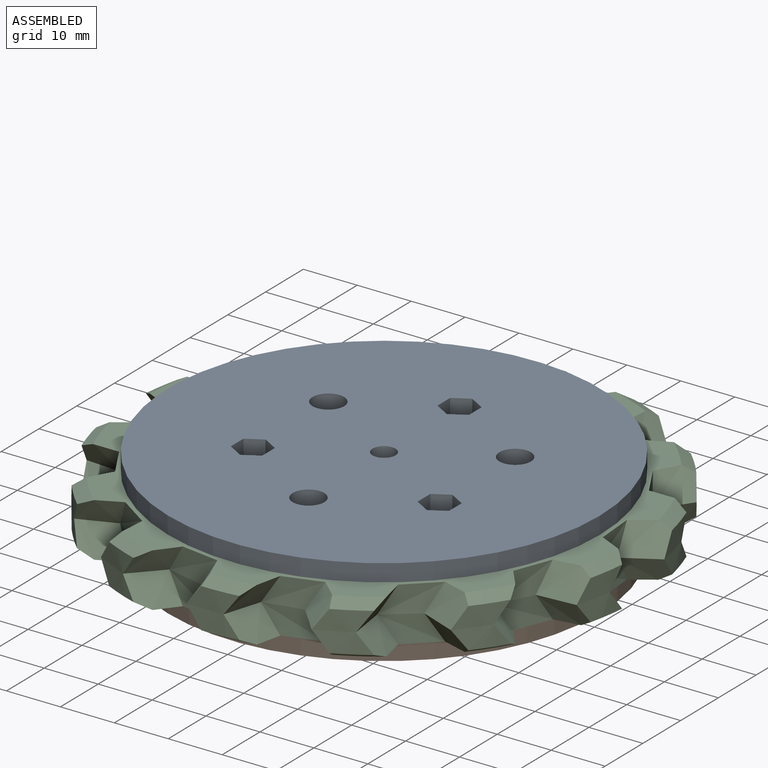
[diagram: assembled view]
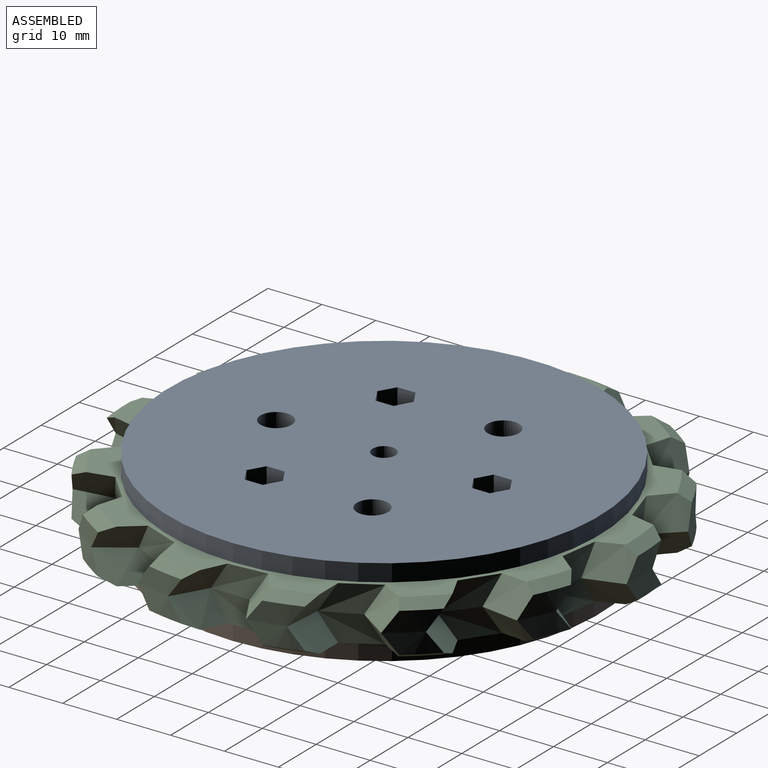
[diagram: assembled view, second angle]
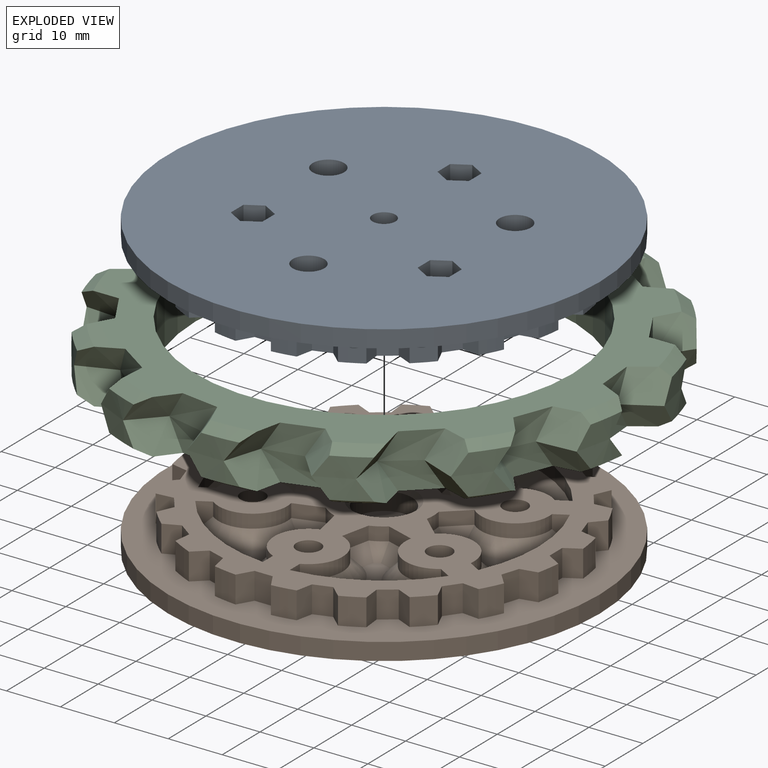
[diagram: exploded view]
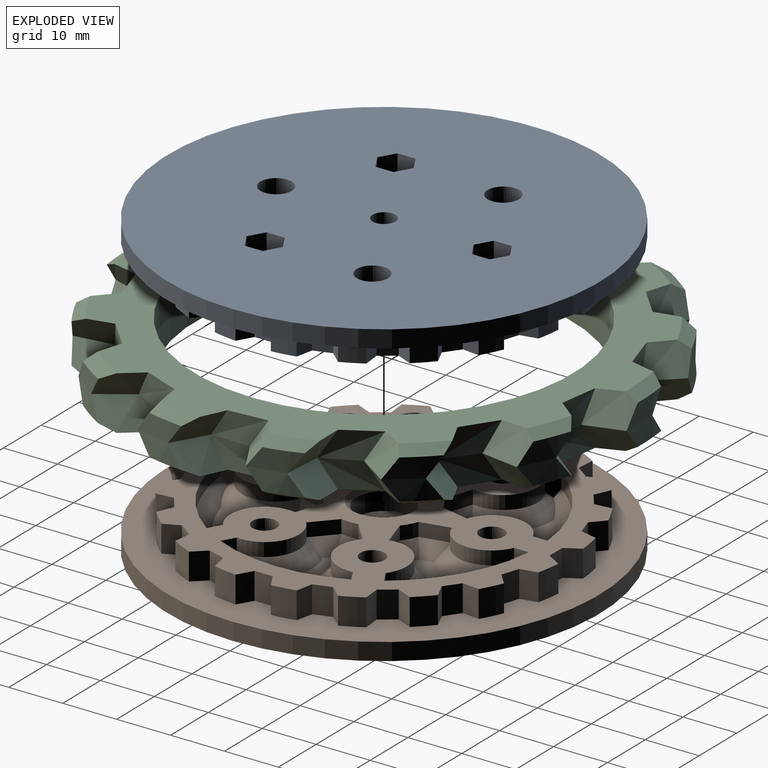
[diagram: exploded view, second angle]
ASSEMBLY  parts=3 mates=6
PART A: 226 faces, bbox 80.3x80.3x8.5 mm
  f0: plane 69.28x69.28mm, normal (0,0,1), area 1969.3mm2, adj f1,f2,f3,f4,f5,f6,f7,f8
  f1: cylinder r=34.79mm len=5mm, axis (0,0,1), area 21.8mm2, adj f0,f30,f87,f133
  f2: cylinder r=34.79mm len=5mm, axis (0,0,1), area 21.8mm2, adj f0,f30,f130,f135
  f3: cylinder r=34.79mm len=5mm, axis (0,0,1), area 21.8mm2, adj f0,f30,f127,f132
  f4: cylinder r=34.79mm len=5mm, axis (0,0,1), area 21.8mm2, adj f0,f30,f124,f129
  f5: cylinder r=34.79mm len=5mm, axis (0,0,1), area 21.8mm2, adj f0,f30,f121,f126
  f6: cylinder r=34.79mm len=5mm, axis (0,0,1), area 21.8mm2, adj f0,f30,f118,f123
  f7: cylinder r=34.79mm len=5mm, axis (0,0,1), area 21.8mm2, adj f0,f30,f115,f120
  f8: cylinder r=34.79mm len=5mm, axis (0,0,1), area 21.8mm2, adj f0,f30,f112,f117
  f9: cylinder r=34.79mm len=5mm, axis (0,0,1), area 21.8mm2, adj f0,f30,f109,f114
  f10: cylinder r=34.79mm len=5mm, axis (0,0,1), area 21.8mm2, adj f0,f30,f106,f111
  f11: cylinder r=34.79mm len=5mm, axis (0,0,1), area 21.8mm2, adj f0,f30,f103,f108
  f12: cylinder r=34.79mm len=5mm, axis (0,0,1), area 21.8mm2, adj f0,f30,f100,f105
  f13: cylinder r=34.79mm len=5mm, axis (0,0,1), area 21.8mm2, adj f0,f30,f97,f102
  f14: cylinder r=34.79mm len=5mm, axis (0,0,1), area 21.8mm2, adj f0,f30,f94,f99
  f15: cylinder r=34.79mm len=5mm, axis (0,0,1), area 21.8mm2, adj f0,f30,f91,f96
  f16: cylinder r=34.79mm len=5mm, axis (0,0,1), area 21.8mm2, adj f0,f30,f88,f93
  f17: cylinder r=34.79mm len=5mm, axis (0,0,1), area 21.8mm2, adj f0,f30,f84,f85
  f18: cylinder r=34.79mm len=5mm, axis (0,0,1), area 21.8mm2, adj f0,f30,f81,f82
  f19: cylinder r=34.79mm len=5mm, axis (0,0,1), area 21.8mm2, adj f0,f30,f77,f79
  f20: cylinder r=2.12mm len=4.25mm, axis (0,0,-1), area 54.7mm2, adj f27,f74
  f21: cylinder r=2.25mm len=4.5mm, axis (0,0,-1), area 52.8mm2, adj f0,f70
  f22: cylinder r=2.25mm len=4.5mm, axis (0,0,-1), area 51.3mm2, adj f0,f64,f65,f66,f67,f68,f69
  f23: cylinder r=2.25mm len=4.5mm, axis (0,0,-1), area 52.8mm2, adj f0,f71
  f24: cylinder r=2.25mm len=4.5mm, axis (0,0,-1), area 51.3mm2, adj f0,f52,f53,f54,f55,f56,f57
  f25: cylinder r=2.25mm len=4.5mm, axis (0,0,-1), area 52.8mm2, adj f0,f72
  f26: cylinder r=2.25mm len=4.5mm, axis (0,0,-1), area 51.3mm2, adj f0,f58,f59,f60,f61,f62,f63
  f27: plane 80x80mm, normal (0,0,-1), area 4843.7mm2, adj f20,f28,f31,f32,f33,f34,f35,f36
  f28: cylinder r=40mm len=80mm, axis (0,0,-1), area 804.2mm2, adj f27,f30
  f29: cylinder r=34.79mm len=5mm, axis (0,0,1), area 21.8mm2, adj f0,f30,f78,f90
  f30: plane 80x80mm, normal (0,0,1), area 1511.4mm2, adj f1,f2,f3,f4,f5,f6,f7,f8
  f31: plane 3.8x3.37mm, normal (1,0,0), area 12.8mm2, adj f27,f32,f36,f68
  f32: plane 3.8x2.92mm, normal (0.5,-0.87,0), area 12.8mm2, adj f27,f31,f33,f69
  f33: plane 3.8x2.92mm, normal (-0.5,-0.87,0), area 12.8mm2, adj f27,f32,f34,f67
  f34: plane 3.8x3.37mm, normal (-1,0,0), area 12.8mm2, adj f27,f33,f35,f65
  f35: plane 3.8x2.92mm, normal (-0.5,0.87,0), area 12.8mm2, adj f27,f34,f36,f64
  f36: plane 3.8x2.92mm, normal (0.5,0.87,0), area 12.8mm2, adj f27,f31,f35,f66
  f37: plane 3.8x2.92mm, normal (-0.5,0.87,0), area 12.8mm2, adj f27,f38,f42,f54
  f38: plane 3.8x2.92mm, normal (0.5,0.87,0), area 12.8mm2, adj f27,f37,f39,f56
  f39: plane 3.8x3.37mm, normal (1,0,0), area 12.8mm2, adj f27,f38,f40,f57
  f40: plane 3.8x2.92mm, normal (0.5,-0.87,0), area 12.8mm2, adj f27,f39,f41,f55
  f41: plane 3.8x2.92mm, normal (-0.5,-0.87,0), area 12.8mm2, adj f27,f40,f42,f53
  f42: plane 3.8x3.37mm, normal (-1,0,0), area 12.8mm2, adj f27,f37,f41,f52
  f43: plane 3.8x2.92mm, normal (-0.5,-0.87,0), area 12.8mm2, adj f27,f44,f48,f60
  f44: plane 3.8x3.37mm, normal (-1,0,0), area 12.8mm2, adj f27,f43,f45,f62
  f45: plane 3.8x2.92mm, normal (-0.5,0.87,0), area 12.8mm2, adj f27,f44,f46,f63
  f46: plane 3.8x2.92mm, normal (0.5,0.87,0), area 12.8mm2, adj f27,f45,f47,f61
  f47: plane 3.8x3.37mm, normal (1,0,0), area 12.8mm2, adj f27,f46,f48,f59
  f48: plane 3.8x2.92mm, normal (0.5,-0.87,0), area 12.8mm2, adj f27,f43,f47,f58
  f49: cylinder r=2.92mm len=5.84mm, axis (0,0,-1), area 69.7mm2, adj f27,f72
  f50: cylinder r=2.92mm len=5.84mm, axis (0,0,-1), area 69.7mm2, adj f27,f71
  f51: cylinder r=2.92mm len=5.84mm, axis (0,0,-1), area 69.7mm2, adj f27,f70
  f52: plane 3.37x0.97mm, normal (-0.71,0,-0.71), area 3.2mm2, adj f24,f42,f53,f54
  f53: plane 2.92x2.24mm, normal (-0.35,-0.61,-0.71), area 3.2mm2, adj f24,f41,f52,f55
  f54: plane 2.92x2.24mm, normal (-0.35,0.61,-0.71), area 3.2mm2, adj f24,f37,f52,f56
  f55: plane 2.92x2.24mm, normal (0.35,-0.61,-0.71), area 3.2mm2, adj f24,f40,f53,f57
  f56: plane 2.92x2.24mm, normal (0.35,0.61,-0.71), area 3.2mm2, adj f24,f38,f54,f57
  f57: plane 3.37x0.97mm, normal (0.71,0,-0.71), area 3.2mm2, adj f24,f39,f55,f56
  f58: plane 2.92x2.24mm, normal (0.35,-0.61,-0.71), area 3.2mm2, adj f26,f48,f59,f60
  f59: plane 3.37x0.97mm, normal (0.71,0,-0.71), area 3.2mm2, adj f26,f47,f58,f61
  f60: plane 2.92x2.24mm, normal (-0.35,-0.61,-0.71), area 3.2mm2, adj f26,f43,f58,f62
  f61: plane 2.92x2.24mm, normal (0.35,0.61,-0.71), area 3.2mm2, adj f26,f46,f59,f63
  f62: plane 3.37x0.97mm, normal (-0.71,0,-0.71), area 3.2mm2, adj f26,f44,f60,f63
  f63: plane 2.92x2.24mm, normal (-0.35,0.61,-0.71), area 3.2mm2, adj f26,f45,f61,f62
  f64: plane 2.92x2.24mm, normal (-0.35,0.61,-0.71), area 3.2mm2, adj f22,f35,f65,f66
  f65: plane 3.37x0.97mm, normal (-0.71,0,-0.71), area 3.2mm2, adj f22,f34,f64,f67
  f66: plane 2.92x2.24mm, normal (0.35,0.61,-0.71), area 3.2mm2, adj f22,f36,f64,f68
  f67: plane 2.92x2.24mm, normal (-0.35,-0.61,-0.71), area 3.2mm2, adj f22,f33,f65,f69
  f68: plane 3.37x0.97mm, normal (0.71,0,-0.71), area 3.2mm2, adj f22,f31,f66,f69
  f69: plane 2.92x2.24mm, normal (0.35,-0.61,-0.71), area 3.2mm2, adj f22,f32,f67,f68
  f70: cone r=0.72mm half-angle=45deg, axis (0,0,-1), area 15.3mm2, adj f21,f51
  f71: cone r=0.72mm half-angle=45deg, axis (0,0,-1), area 15.3mm2, adj f23,f50
  f72: cone r=0.72mm half-angle=45deg, axis (0,0,-1), area 15.3mm2, adj f25,f49
  f73: cylinder r=5.19mm len=10.38mm, axis (0,0,1), area 107.6mm2, adj f74,f75
  f74: plane 10.38x10.38mm, normal (0,0,1), area 70.4mm2, adj f20,f73
  f75: cone r=5.19mm half-angle=45deg, axis (0,0,1), area 39.7mm2, adj f0,f73
  f76: plane 5x3.37mm, normal (0,1,0), area 16.8mm2, adj f0,f30,f77,f78
  f77: plane 5x2.76mm, normal (-0.87,0.5,0), area 15.9mm2, adj f0,f19,f30,f76
  f78: plane 5x2.76mm, normal (0.87,0.5,0), area 15.9mm2, adj f0,f29,f30,f76
  f79: plane 5x3.12mm, normal (0.98,0.21,0), area 15.9mm2, adj f0,f19,f30,f80
  f80: plane 5x3.2mm, normal (0.31,0.95,0), area 16.8mm2, adj f0,f30,f79,f81
  f81: plane 5x2.37mm, normal (-0.67,0.74,0), area 15.9mm2, adj f0,f18,f30,f80
  f82: plane 5x3.17mm, normal (0.99,-0.1,0), area 15.9mm2, adj f0,f18,f30,f83
  f83: plane 5x2.73mm, normal (0.59,0.81,0), area 16.8mm2, adj f0,f30,f82,f84
  f84: plane 5x2.91mm, normal (-0.41,0.91,0), area 15.9mm2, adj f0,f17,f30,f83
  f85: plane 5x2.91mm, normal (0.91,-0.41,0), area 15.9mm2, adj f0,f17,f30,f86
  f86: plane 5x2.73mm, normal (0.81,0.59,0), area 16.8mm2, adj f0,f30,f85,f87
  f87: plane 5x3.17mm, normal (-0.1,0.99,0), area 15.9mm2, adj f0,f1,f30,f86
  f88: plane 5x2.37mm, normal (0.67,0.74,0), area 15.9mm2, adj f0,f16,f30,f89
  f89: plane 5x3.2mm, normal (-0.31,0.95,0), area 16.8mm2, adj f0,f30,f88,f90
  f90: plane 5x3.12mm, normal (-0.98,0.21,0), area 15.9mm2, adj f0,f29,f30,f89
  f91: plane 5x2.91mm, normal (0.41,0.91,0), area 15.9mm2, adj f0,f15,f30,f92
  f92: plane 5x2.73mm, normal (-0.59,0.81,0), area 16.8mm2, adj f0,f30,f91,f93
  f93: plane 5x3.17mm, normal (-0.99,-0.1,0), area 15.9mm2, adj f0,f16,f30,f92
  f94: plane 5x3.17mm, normal (0.1,0.99,0), area 15.9mm2, adj f0,f14,f30,f95
  f95: plane 5x2.73mm, normal (-0.81,0.59,0), area 16.8mm2, adj f0,f30,f94,f96
  f96: plane 5x2.91mm, normal (-0.91,-0.41,0), area 15.9mm2, adj f0,f15,f30,f95
  f97: plane 5x3.12mm, normal (-0.21,0.98,0), area 15.9mm2, adj f0,f13,f30,f98
  f98: plane 5x3.2mm, normal (-0.95,0.31,0), area 16.8mm2, adj f0,f30,f97,f99
  f99: plane 5x2.37mm, normal (-0.74,-0.67,0), area 15.9mm2, adj f0,f14,f30,f98
  f100: plane 5x2.76mm, normal (-0.5,0.87,0), area 15.9mm2, adj f0,f12,f30,f101
  f101: plane 5x3.37mm, normal (-1,0,0), area 16.8mm2, adj f0,f30,f100,f102
  f102: plane 5x2.76mm, normal (-0.5,-0.87,0), area 15.9mm2, adj f0,f13,f30,f101
  f103: plane 5x2.37mm, normal (-0.74,0.67,0), area 15.9mm2, adj f0,f11,f30,f104
  f104: plane 5x3.2mm, normal (-0.95,-0.31,0), area 16.8mm2, adj f0,f30,f103,f105
  f105: plane 5x3.12mm, normal (-0.21,-0.98,0), area 15.9mm2, adj f0,f12,f30,f104
  f106: plane 5x2.91mm, normal (-0.91,0.41,0), area 15.9mm2, adj f0,f10,f30,f107
  f107: plane 5x2.73mm, normal (-0.81,-0.59,0), area 16.8mm2, adj f0,f30,f106,f108
  f108: plane 5x3.17mm, normal (0.1,-0.99,0), area 15.9mm2, adj f0,f11,f30,f107
  f109: plane 5x3.17mm, normal (-0.99,0.1,0), area 15.9mm2, adj f0,f9,f30,f110
  f110: plane 5x2.73mm, normal (-0.59,-0.81,0), area 16.8mm2, adj f0,f30,f109,f111
  f111: plane 5x2.91mm, normal (0.41,-0.91,0), area 15.9mm2, adj f0,f10,f30,f110
  f112: plane 5x3.12mm, normal (-0.98,-0.21,0), area 15.9mm2, adj f0,f8,f30,f113
  f113: plane 5x3.2mm, normal (-0.31,-0.95,0), area 16.8mm2, adj f0,f30,f112,f114
  f114: plane 5x2.37mm, normal (0.67,-0.74,0), area 15.9mm2, adj f0,f9,f30,f113
  f115: plane 5x2.76mm, normal (-0.87,-0.5,0), area 15.9mm2, adj f0,f7,f30,f116
  f116: plane 5x3.37mm, normal (0,-1,0), area 16.8mm2, adj f0,f30,f115,f117
  f117: plane 5x2.76mm, normal (0.87,-0.5,0), area 15.9mm2, adj f0,f8,f30,f116
  f118: plane 5x2.37mm, normal (-0.67,-0.74,0), area 15.9mm2, adj f0,f6,f30,f119
  f119: plane 5x3.2mm, normal (0.31,-0.95,0), area 16.8mm2, adj f0,f30,f118,f120
  f120: plane 5x3.12mm, normal (0.98,-0.21,0), area 15.9mm2, adj f0,f7,f30,f119
  f121: plane 5x2.91mm, normal (-0.41,-0.91,0), area 15.9mm2, adj f0,f5,f30,f122
  f122: plane 5x2.73mm, normal (0.59,-0.81,0), area 16.8mm2, adj f0,f30,f121,f123
  f123: plane 5x3.17mm, normal (0.99,0.1,0), area 15.9mm2, adj f0,f6,f30,f122
  f124: plane 5x3.17mm, normal (-0.1,-0.99,0), area 15.9mm2, adj f0,f4,f30,f125
  f125: plane 5x2.73mm, normal (0.81,-0.59,0), area 16.8mm2, adj f0,f30,f124,f126
  f126: plane 5x2.91mm, normal (0.91,0.41,0), area 15.9mm2, adj f0,f5,f30,f125
  f127: plane 5x3.12mm, normal (0.21,-0.98,0), area 15.9mm2, adj f0,f3,f30,f128
  f128: plane 5x3.2mm, normal (0.95,-0.31,0), area 16.8mm2, adj f0,f30,f127,f129
  f129: plane 5x2.37mm, normal (0.74,0.67,0), area 15.9mm2, adj f0,f4,f30,f128
  f130: plane 5x2.76mm, normal (0.5,-0.87,0), area 15.9mm2, adj f0,f2,f30,f131
  f131: plane 5x3.37mm, normal (1,0,0), area 16.8mm2, adj f0,f30,f130,f132
  f132: plane 5x2.76mm, normal (0.5,0.87,0), area 15.9mm2, adj f0,f3,f30,f131
  f133: plane 5x2.37mm, normal (0.74,-0.67,0), area 15.9mm2, adj f0,f1,f30,f134
  f134: plane 5x3.2mm, normal (0.95,0.31,0), area 16.8mm2, adj f0,f30,f133,f135
  f135: plane 5x3.12mm, normal (0.21,0.98,0), area 15.9mm2, adj f0,f2,f30,f134
  f136: plane 3.86x2.78mm, normal (-1,0,0), area 8.6mm2, adj f0,f137,f143,f214,f215
  f137: cylinder r=28.68mm len=20.99mm, axis (0,0,1), area 62.6mm2, adj f0,f136,f138,f215
  f138: plane 3.86x2.41mm, normal (0.5,0.87,0), area 8.6mm2, adj f0,f137,f139,f215,f217
  f139: cylinder r=6.35mm len=10.16mm, axis (0,0,1), area 38.4mm2, adj f0,f138,f140,f217
  f140: plane 5.22x2.5mm, normal (0.3,0.95,0), area 13.7mm2, adj f0,f139,f141,f219
  f141: cylinder r=9.19mm len=2.7mm, axis (0,0,1), area 7.8mm2, adj f0,f140,f142,f218
  f142: plane 5.35x2.5mm, normal (-0.98,0.21,0), area 13.7mm2, adj f0,f141,f143,f216
  f143: cylinder r=6.35mm len=11.86mm, axis (0,0,1), area 38.4mm2, adj f0,f136,f142,f214
  f144: plane 15.34x13.35mm, normal (0,0,1), area 64.9mm2, adj f214,f215,f216,f217,f218,f219
  f145: cylinder r=28.68mm len=24.24mm, axis (0,0,1), area 62.6mm2, adj f0,f146,f152,f204
  f146: plane 3.86x2.41mm, normal (0.5,-0.87,0), area 8.6mm2, adj f0,f145,f147,f202,f204
  f147: cylinder r=6.35mm len=10.57mm, axis (0,0,1), area 38.4mm2, adj f0,f146,f148,f202
  f148: plane 4.05x3.69mm, normal (0.67,-0.74,0), area 13.7mm2, adj f0,f147,f149,f203
  f149: cylinder r=9.19mm len=3.12mm, axis (0,0,1), area 7.8mm2, adj f0,f148,f150,f205
  f150: plane 4.05x3.69mm, normal (0.67,0.74,0), area 13.7mm2, adj f0,f149,f151,f207
  f151: cylinder r=6.35mm len=10.57mm, axis (0,0,1), area 38.4mm2, adj f0,f150,f152,f206
  f152: plane 3.86x2.41mm, normal (0.5,0.87,0), area 8.6mm2, adj f0,f145,f151,f204,f206
  f153: plane 14.5x12.73mm, normal (0,0,1), area 64.9mm2, adj f202,f203,f204,f205,f206,f207
  f154: cylinder r=9.19mm len=2.7mm, axis (0,0,1), area 7.8mm2, adj f0,f155,f161,f208
  f155: plane 5.22x2.5mm, normal (-0.3,0.95,0), area 13.7mm2, adj f0,f154,f156,f209
  f156: cylinder r=6.35mm len=10.16mm, axis (0,0,1), area 38.4mm2, adj f0,f155,f157,f211
  f157: plane 3.86x2.41mm, normal (-0.5,0.87,0), area 8.6mm2, adj f0,f156,f158,f211,f213
  f158: cylinder r=28.68mm len=20.99mm, axis (0,0,1), area 62.6mm2, adj f0,f157,f159,f213
  f159: plane 3.86x2.78mm, normal (1,0,0), area 8.6mm2, adj f0,f158,f160,f212,f213
  f160: cylinder r=6.35mm len=11.86mm, axis (0,0,1), area 38.4mm2, adj f0,f159,f161,f212
  f161: plane 5.35x2.5mm, normal (0.98,0.21,0), area 13.7mm2, adj f0,f154,f160,f210
  f162: plane 15.34x13.35mm, normal (0,0,1), area 64.9mm2, adj f208,f209,f210,f211,f212,f213
  f163: plane 3.86x2.41mm, normal (-0.5,-0.87,0), area 8.6mm2, adj f0,f164,f170,f220,f222
  f164: cylinder r=28.68mm len=24.24mm, axis (0,0,1), area 62.6mm2, adj f0,f163,f165,f222
  f165: plane 3.86x2.41mm, normal (-0.5,0.87,0), area 8.6mm2, adj f0,f164,f166,f222,f224
  f166: cylinder r=6.35mm len=10.57mm, axis (0,0,1), area 38.4mm2, adj f0,f165,f167,f224
  f167: plane 4.05x3.69mm, normal (-0.67,0.74,0), area 13.7mm2, adj f0,f166,f168,f225
  f168: cylinder r=9.19mm len=3.12mm, axis (0,0,1), area 7.8mm2, adj f0,f167,f169,f223
  f169: plane 4.05x3.69mm, normal (-0.67,-0.74,0), area 13.7mm2, adj f0,f168,f170,f221
  f170: cylinder r=6.35mm len=10.57mm, axis (0,0,1), area 38.4mm2, adj f0,f163,f169,f220
  f171: plane 14.5x12.73mm, normal (0,0,1), area 64.9mm2, adj f220,f221,f222,f223,f224,f225
  f172: plane 3.86x2.41mm, normal (0.5,-0.87,0), area 8.6mm2, adj f0,f173,f179,f190,f192
  f173: cylinder r=28.68mm len=20.99mm, axis (0,0,1), area 62.6mm2, adj f0,f172,f174,f192
  f174: plane 3.86x2.78mm, normal (-1,0,0), area 8.6mm2, adj f0,f173,f175,f192,f194
  f175: cylinder r=6.35mm len=11.86mm, axis (0,0,1), area 38.4mm2, adj f0,f174,f176,f194
  f176: plane 5.35x2.5mm, normal (-0.98,-0.21,0), area 13.7mm2, adj f0,f175,f177,f195
  f177: cylinder r=9.19mm len=2.7mm, axis (0,0,1), area 7.8mm2, adj f0,f176,f178,f193
  f178: plane 5.22x2.5mm, normal (0.3,-0.95,0), area 13.7mm2, adj f0,f177,f179,f191
  f179: cylinder r=6.35mm len=10.16mm, axis (0,0,1), area 38.4mm2, adj f0,f172,f178,f190
  f180: plane 15.34x13.35mm, normal (0,0,1), area 64.9mm2, adj f190,f191,f192,f193,f194,f195
  f181: plane 3.86x2.78mm, normal (1,0,0), area 8.6mm2, adj f0,f182,f188,f196,f198
  f182: cylinder r=28.68mm len=20.99mm, axis (0,0,1), area 62.6mm2, adj f0,f181,f183,f198
  f183: plane 3.86x2.41mm, normal (-0.5,-0.87,0), area 8.6mm2, adj f0,f182,f184,f198,f200
  f184: cylinder r=6.35mm len=10.16mm, axis (0,0,1), area 38.4mm2, adj f0,f183,f185,f200
  f185: plane 5.22x2.5mm, normal (-0.3,-0.95,0), area 13.7mm2, adj f0,f184,f186,f201
  f186: cylinder r=9.19mm len=2.7mm, axis (0,0,1), area 7.8mm2, adj f0,f185,f187,f199
  f187: plane 5.35x2.5mm, normal (0.98,-0.21,0), area 13.7mm2, adj f0,f186,f188,f197
  f188: cylinder r=6.35mm len=11.86mm, axis (0,0,1), area 38.4mm2, adj f0,f181,f187,f196
  f189: plane 15.34x13.35mm, normal (0,0,1), area 64.9mm2, adj f196,f197,f198,f199,f200,f201
  f190: cone r=6.35mm half-angle=45deg, axis (0,0,-1), area 58.4mm2, adj f172,f179,f180,f191,f192
  f191: plane 5.49x3.72mm, normal (0.21,-0.67,0.71), area 13.5mm2, adj f178,f180,f190,f193
  f192: cone r=26.18mm half-angle=45deg, axis (0,0,1), area 75.7mm2, adj f172,f173,f174,f180,f190,f194
  f193: cone r=9.19mm half-angle=45deg, axis (0,0,-1), area 7.9mm2, adj f177,f180,f191,f195
  f194: cone r=6.35mm half-angle=45deg, axis (0,0,-1), area 58.4mm2, adj f174,f175,f180,f192,f195
  f195: plane 5.62x3.62mm, normal (-0.69,-0.15,0.71), area 13.5mm2, adj f176,f180,f193,f194
  f196: cone r=6.35mm half-angle=45deg, axis (0,0,-1), area 58.4mm2, adj f181,f188,f189,f197,f198
  f197: plane 5.62x3.62mm, normal (0.69,-0.15,0.71), area 13.5mm2, adj f187,f189,f196,f199
  f198: cone r=26.18mm half-angle=45deg, axis (0,0,1), area 75.7mm2, adj f181,f182,f183,f189,f196,f200
  f199: cone r=9.19mm half-angle=45deg, axis (0,0,-1), area 7.9mm2, adj f186,f189,f197,f201
  f200: cone r=6.35mm half-angle=45deg, axis (0,0,-1), area 58.4mm2, adj f183,f184,f189,f198,f201
  f201: plane 5.49x3.72mm, normal (-0.21,-0.67,0.71), area 13.5mm2, adj f185,f189,f199,f200
  f202: cone r=6.35mm half-angle=45deg, axis (0,0,-1), area 58.4mm2, adj f146,f147,f153,f203,f204
  f203: plane 4.96x4.56mm, normal (0.48,-0.52,0.71), area 13.5mm2, adj f148,f153,f202,f205
  f204: cone r=26.18mm half-angle=45deg, axis (0,0,1), area 75.7mm2, adj f145,f146,f152,f153,f202,f206
  f205: cone r=9.19mm half-angle=45deg, axis (0,0,-1), area 7.9mm2, adj f149,f153,f203,f207
  f206: cone r=6.35mm half-angle=45deg, axis (0,0,-1), area 58.4mm2, adj f151,f152,f153,f204,f207
  f207: plane 4.96x4.56mm, normal (0.48,0.52,0.71), area 13.5mm2, adj f150,f153,f205,f206
  f208: cone r=9.19mm half-angle=45deg, axis (0,0,-1), area 7.9mm2, adj f154,f162,f209,f210
  f209: plane 5.49x3.72mm, normal (-0.21,0.67,0.71), area 13.5mm2, adj f155,f162,f208,f211
  f210: plane 5.62x3.62mm, normal (0.69,0.15,0.71), area 13.5mm2, adj f161,f162,f208,f212
  f211: cone r=6.35mm half-angle=45deg, axis (0,0,-1), area 58.4mm2, adj f156,f157,f162,f209,f213
  f212: cone r=6.35mm half-angle=45deg, axis (0,0,-1), area 58.4mm2, adj f159,f160,f162,f210,f213
  f213: cone r=26.18mm half-angle=45deg, axis (0,0,1), area 75.7mm2, adj f157,f158,f159,f162,f211,f212
  f214: cone r=6.35mm half-angle=45deg, axis (0,0,-1), area 58.4mm2, adj f136,f143,f144,f215,f216
  f215: cone r=26.18mm half-angle=45deg, axis (0,0,1), area 75.7mm2, adj f136,f137,f138,f144,f214,f217
  f216: plane 5.62x3.62mm, normal (-0.69,0.15,0.71), area 13.5mm2, adj f142,f144,f214,f218
  f217: cone r=6.35mm half-angle=45deg, axis (0,0,-1), area 58.4mm2, adj f138,f139,f144,f215,f219
  f218: cone r=9.19mm half-angle=45deg, axis (0,0,-1), area 7.9mm2, adj f141,f144,f216,f219
  f219: plane 5.49x3.72mm, normal (0.21,0.67,0.71), area 13.5mm2, adj f140,f144,f217,f218
  f220: cone r=6.35mm half-angle=45deg, axis (0,0,-1), area 58.4mm2, adj f163,f170,f171,f221,f222
  f221: plane 4.96x4.56mm, normal (-0.48,-0.52,0.71), area 13.5mm2, adj f169,f171,f220,f223
  f222: cone r=26.18mm half-angle=45deg, axis (0,0,1), area 75.7mm2, adj f163,f164,f165,f171,f220,f224
  f223: cone r=9.19mm half-angle=45deg, axis (0,0,-1), area 7.9mm2, adj f168,f171,f221,f225
  f224: cone r=6.35mm half-angle=45deg, axis (0,0,-1), area 58.4mm2, adj f165,f166,f171,f222,f225
  f225: plane 4.96x4.56mm, normal (-0.48,0.52,0.71), area 13.5mm2, adj f167,f171,f223,f224
PART B: same geometry as A
PART C: 129 faces, bbox 94.9x95.6x30.8 mm
  f0: plane 90.51x90.37mm, normal (0,0,-1), area 1980.2mm2, adj f15,f16,f17,f18,f19,f20,f21,f22
  f1: cylinder r=47.5mm len=9.4mm, axis (0,0,-1), area 50.5mm2, adj f16,f41,f47,f97,f102,f104
  f2: cylinder r=47.5mm len=7.66mm, axis (0,0,-1), area 50.5mm2, adj f39,f42,f93,f99,f101,f103
  f3: cylinder r=47.5mm len=8.51mm, axis (0,0,-1), area 50.5mm2, adj f37,f40,f89,f95,f105,f106
  f4: cylinder r=47.5mm len=9.57mm, axis (0,0,-1), area 50.5mm2, adj f35,f38,f85,f91,f107,f108
  f5: cylinder r=47.5mm len=8.75mm, axis (0,0,-1), area 50.5mm2, adj f33,f36,f81,f87,f109,f110
  f6: cylinder r=47.5mm len=7.4mm, axis (0,0,-1), area 50.5mm2, adj f31,f34,f77,f83,f111,f112
  f7: cylinder r=47.5mm len=9.27mm, axis (0,0,-1), area 50.5mm2, adj f29,f32,f73,f79,f113,f114
  f8: cylinder r=47.5mm len=9.4mm, axis (0,0,-1), area 50.5mm2, adj f27,f30,f69,f75,f115,f116
  f9: cylinder r=47.5mm len=7.66mm, axis (0,0,-1), area 50.5mm2, adj f25,f28,f65,f71,f117,f118
  f10: cylinder r=47.5mm len=8.51mm, axis (0,0,-1), area 50.5mm2, adj f23,f26,f61,f67,f119,f120
  f11: cylinder r=47.5mm len=9.57mm, axis (0,0,-1), area 50.5mm2, adj f21,f24,f57,f63,f121,f122
  f12: cylinder r=47.5mm len=8.75mm, axis (0,0,-1), area 50.5mm2, adj f19,f22,f53,f59,f123,f124
  f13: cylinder r=47.5mm len=7.4mm, axis (0,0,-1), area 50.5mm2, adj f17,f20,f49,f55,f125,f126
  f14: cylinder r=47.5mm len=9.27mm, axis (0,0,-1), area 50.5mm2, adj f15,f18,f45,f51,f127,f128
  f15: bspline ~15.38x14.63mm, area 40.9mm2, adj f0,f14,f45,f48,f127
  f16: bspline ~6.82x6.67mm, area 40.9mm2, adj f0,f1,f47,f48,f102
  f17: bspline ~8.96x5.82mm, area 40.9mm2, adj f0,f13,f49,f52,f125
  f18: bspline ~15.38x11.76mm, area 40.9mm2, adj f0,f14,f51,f52,f127
  f19: bspline ~15.38x11.59mm, area 40.9mm2, adj f0,f12,f53,f56,f123
  f20: bspline ~9.13x5.28mm, area 40.9mm2, adj f0,f13,f55,f56,f125
  f21: bspline ~15.38x13.56mm, area 40.9mm2, adj f0,f11,f57,f60,f121
  f22: bspline ~15.38x14.58mm, area 40.9mm2, adj f0,f12,f59,f60,f123
  f23: bspline ~8.32x6.4mm, area 40.9mm2, adj f0,f10,f61,f64,f119
  f24: bspline ~15.38x11.65mm, area 40.9mm2, adj f0,f11,f63,f64,f121
  f25: bspline ~15.38x13.41mm, area 40.9mm2, adj f0,f9,f65,f68,f117
  f26: bspline ~15.38x13.52mm, area 40.9mm2, adj f0,f10,f67,f68,f119
  f27: bspline ~15.38x11.81mm, area 40.9mm2, adj f0,f8,f69,f72,f115
  f28: bspline ~15.38x14.97mm, area 40.9mm2, adj f0,f9,f71,f72,f117
  f29: bspline ~15.38x14.63mm, area 40.9mm2, adj f0,f7,f73,f76,f113
  f30: bspline ~6.82x6.67mm, area 40.9mm2, adj f0,f8,f75,f76,f115
  f31: bspline ~8.96x5.82mm, area 40.9mm2, adj f0,f6,f77,f80,f111
  f32: bspline ~15.38x11.76mm, area 40.9mm2, adj f0,f7,f79,f80,f113
  f33: bspline ~15.38x11.59mm, area 40.9mm2, adj f0,f5,f81,f84,f109
  f34: bspline ~9.13x5.28mm, area 40.9mm2, adj f0,f6,f83,f84,f111
  f35: bspline ~15.38x13.56mm, area 40.9mm2, adj f0,f4,f85,f88,f107
  f36: bspline ~15.38x14.58mm, area 40.9mm2, adj f0,f5,f87,f88,f109
  f37: bspline ~8.32x6.4mm, area 40.9mm2, adj f0,f3,f89,f92,f105
  f38: bspline ~15.38x11.65mm, area 40.9mm2, adj f0,f4,f91,f92,f107
  f39: bspline ~15.38x13.41mm, area 40.9mm2, adj f0,f2,f93,f96,f101
  f40: bspline ~15.38x13.52mm, area 40.9mm2, adj f0,f3,f95,f96,f105
  f41: bspline ~15.38x11.81mm, area 40.9mm2, adj f0,f1,f97,f100,f102
  f42: bspline ~15.38x14.97mm, area 40.9mm2, adj f0,f2,f99,f100,f101
  f43: cylinder r=35mm len=70mm, axis (0,0,-1), area 2199.1mm2, adj f0,f44
  f44: plane 90.51x90.37mm, normal (0,0,1), area 1980.2mm2, adj f43,f45,f46,f47,f49,f50,f51,f53
  f45: bspline ~15.38x14.63mm, area 40.9mm2, adj f14,f15,f44,f46,f128
  f46: bspline ~10.4x5mm, area 36.1mm2, adj f44,f45,f47,f48
  f47: bspline ~6.82x6.67mm, area 40.9mm2, adj f1,f16,f44,f46,f104
  f48: bspline ~10.4x5mm, area 36.1mm2, adj f0,f15,f16,f46
  f49: bspline ~8.96x5.82mm, area 40.9mm2, adj f13,f17,f44,f50,f126
  f50: bspline ~9.2x5mm, area 36.1mm2, adj f44,f49,f51,f52
  f51: bspline ~15.38x11.76mm, area 40.9mm2, adj f14,f18,f44,f50,f128
  f52: bspline ~9.2x5mm, area 36.1mm2, adj f0,f17,f18,f50
  f53: bspline ~15.38x11.59mm, area 40.9mm2, adj f12,f19,f44,f54,f124
  f54: bspline ~8.39x6.17mm, area 36.1mm2, adj f44,f53,f55,f56
  f55: bspline ~9.13x5.28mm, area 40.9mm2, adj f13,f20,f44,f54,f126
  f56: bspline ~8.39x6.17mm, area 36.1mm2, adj f0,f19,f20,f54
  f57: bspline ~15.38x13.56mm, area 40.9mm2, adj f11,f21,f44,f58,f122
  f58: bspline ~10.23x5mm, area 36.1mm2, adj f44,f57,f59,f60
  f59: bspline ~15.38x14.58mm, area 40.9mm2, adj f12,f22,f44,f58,f124
  f60: bspline ~10.23x5mm, area 36.1mm2, adj f0,f21,f22,f58
  f61: bspline ~8.32x6.4mm, area 40.9mm2, adj f10,f23,f44,f62,f120
  f62: bspline ~10.05x5mm, area 36.1mm2, adj f44,f61,f63,f64
  f63: bspline ~15.38x11.65mm, area 40.9mm2, adj f11,f24,f44,f62,f122
  f64: bspline ~10.05x5mm, area 36.1mm2, adj f0,f23,f24,f62
  f65: bspline ~15.38x13.41mm, area 40.9mm2, adj f9,f25,f44,f66,f118
  f66: bspline ~7.88x6.81mm, area 36.1mm2, adj f44,f65,f67,f68
  f67: bspline ~15.38x13.52mm, area 40.9mm2, adj f10,f26,f44,f66,f120
  f68: bspline ~7.88x6.81mm, area 36.1mm2, adj f0,f25,f26,f66
  f69: bspline ~15.38x11.81mm, area 40.9mm2, adj f8,f27,f44,f70,f116
  f70: bspline ~9.55x5mm, area 36.1mm2, adj f44,f69,f71,f72
  f71: bspline ~15.38x14.97mm, area 40.9mm2, adj f9,f28,f44,f70,f118
  f72: bspline ~9.55x5mm, area 36.1mm2, adj f0,f27,f28,f70
  f73: bspline ~15.38x14.63mm, area 40.9mm2, adj f7,f29,f44,f74,f114
  f74: bspline ~10.4x5mm, area 36.1mm2, adj f44,f73,f75,f76
  f75: bspline ~6.82x6.67mm, area 40.9mm2, adj f8,f30,f44,f74,f116
  f76: bspline ~10.4x5mm, area 36.1mm2, adj f0,f29,f30,f74
  f77: bspline ~8.96x5.82mm, area 40.9mm2, adj f6,f31,f44,f78,f112
  f78: bspline ~9.2x5mm, area 36.1mm2, adj f44,f77,f79,f80
  f79: bspline ~15.38x11.76mm, area 40.9mm2, adj f7,f32,f44,f78,f114
  f80: bspline ~9.2x5mm, area 36.1mm2, adj f0,f31,f32,f78
  f81: bspline ~15.38x11.59mm, area 40.9mm2, adj f5,f33,f44,f82,f110
  f82: bspline ~8.39x6.17mm, area 36.1mm2, adj f44,f81,f83,f84
  f83: bspline ~9.13x5.28mm, area 40.9mm2, adj f6,f34,f44,f82,f112
  f84: bspline ~8.39x6.17mm, area 36.1mm2, adj f0,f33,f34,f82
  f85: bspline ~15.38x13.56mm, area 40.9mm2, adj f4,f35,f44,f86,f108
  f86: bspline ~10.23x5mm, area 36.1mm2, adj f44,f85,f87,f88
  f87: bspline ~15.38x14.58mm, area 40.9mm2, adj f5,f36,f44,f86,f110
  f88: bspline ~10.23x5mm, area 36.1mm2, adj f0,f35,f36,f86
  f89: bspline ~8.32x6.4mm, area 40.9mm2, adj f3,f37,f44,f90,f106
  f90: bspline ~10.05x5mm, area 36.1mm2, adj f44,f89,f91,f92
  f91: bspline ~15.38x11.65mm, area 40.9mm2, adj f4,f38,f44,f90,f108
  f92: bspline ~10.05x5mm, area 36.1mm2, adj f0,f37,f38,f90
  f93: bspline ~15.38x13.41mm, area 40.9mm2, adj f2,f39,f44,f94,f103
  f94: bspline ~7.88x6.81mm, area 36.1mm2, adj f44,f93,f95,f96
  f95: bspline ~15.38x13.52mm, area 40.9mm2, adj f3,f40,f44,f94,f106
  f96: bspline ~7.88x6.81mm, area 36.1mm2, adj f0,f39,f40,f94
  f97: bspline ~15.38x11.81mm, area 40.9mm2, adj f1,f41,f44,f98,f104
  f98: bspline ~9.55x5mm, area 36.1mm2, adj f44,f97,f99,f100
  f99: bspline ~15.38x14.97mm, area 40.9mm2, adj f2,f42,f44,f98,f103
  f100: bspline ~9.55x5mm, area 36.1mm2, adj f0,f41,f42,f98
  f101: cone r=48.02mm half-angle=60deg, axis (0,0,1), area 19.6mm2, adj f0,f2,f39,f42
  f102: cone r=48.02mm half-angle=60deg, axis (0,0,1), area 19.6mm2, adj f0,f1,f16,f41
  f103: cone r=48.02mm half-angle=60deg, axis (0,0,-1), area 19.6mm2, adj f2,f44,f93,f99
  f104: cone r=48.02mm half-angle=60deg, axis (0,0,-1), area 19.6mm2, adj f1,f44,f47,f97
  f105: cone r=48.02mm half-angle=60deg, axis (0,0,1), area 19.6mm2, adj f0,f3,f37,f40
  f106: cone r=48.02mm half-angle=60deg, axis (0,0,-1), area 19.6mm2, adj f3,f44,f89,f95
  f107: cone r=48.02mm half-angle=60deg, axis (0,0,1), area 19.6mm2, adj f0,f4,f35,f38
  f108: cone r=48.02mm half-angle=60deg, axis (0,0,-1), area 19.6mm2, adj f4,f44,f85,f91
  f109: cone r=48.02mm half-angle=60deg, axis (0,0,1), area 19.6mm2, adj f0,f5,f33,f36
  f110: cone r=48.02mm half-angle=60deg, axis (0,0,-1), area 19.6mm2, adj f5,f44,f81,f87
  f111: cone r=48.02mm half-angle=60deg, axis (0,0,1), area 19.6mm2, adj f0,f6,f31,f34
  f112: cone r=48.02mm half-angle=60deg, axis (0,0,-1), area 19.6mm2, adj f6,f44,f77,f83
  f113: cone r=48.02mm half-angle=60deg, axis (0,0,1), area 19.6mm2, adj f0,f7,f29,f32
  f114: cone r=48.02mm half-angle=60deg, axis (0,0,-1), area 19.6mm2, adj f7,f44,f73,f79
  f115: cone r=48.02mm half-angle=60deg, axis (0,0,1), area 19.6mm2, adj f0,f8,f27,f30
  f116: cone r=48.02mm half-angle=60deg, axis (0,0,-1), area 19.6mm2, adj f8,f44,f69,f75
  f117: cone r=48.02mm half-angle=60deg, axis (0,0,1), area 19.6mm2, adj f0,f9,f25,f28
  f118: cone r=48.02mm half-angle=60deg, axis (0,0,-1), area 19.6mm2, adj f9,f44,f65,f71
  f119: cone r=48.02mm half-angle=60deg, axis (0,0,1), area 19.6mm2, adj f0,f10,f23,f26
  f120: cone r=48.02mm half-angle=60deg, axis (0,0,-1), area 19.6mm2, adj f10,f44,f61,f67
  f121: cone r=48.02mm half-angle=60deg, axis (0,0,1), area 19.6mm2, adj f0,f11,f21,f24
  f122: cone r=48.02mm half-angle=60deg, axis (0,0,-1), area 19.6mm2, adj f11,f44,f57,f63
  f123: cone r=48.02mm half-angle=60deg, axis (0,0,1), area 19.6mm2, adj f0,f12,f19,f22
  f124: cone r=48.02mm half-angle=60deg, axis (0,0,-1), area 19.6mm2, adj f12,f44,f53,f59
  f125: cone r=48.02mm half-angle=60deg, axis (0,0,1), area 19.6mm2, adj f0,f13,f17,f20
  f126: cone r=48.02mm half-angle=60deg, axis (0,0,-1), area 19.6mm2, adj f13,f44,f49,f55
  f127: cone r=48.02mm half-angle=60deg, axis (0,0,1), area 19.6mm2, adj f0,f14,f15,f18
  f128: cone r=48.02mm half-angle=60deg, axis (0,0,-1), area 19.6mm2, adj f14,f44,f45,f51
PLACE A rot(axis=(1,0,0),180deg) t=(0.4,0.85,7.84)mm
PLACE B t=(0.4,0.85,-8.56)mm fixed
PLACE C rot(axis=(0,1,0),0deg) t=(0.4,0.85,-0.36)mm
MATE planar B.f164 <-> C.f101  axis (0,0,1) through (0.4,0.85,-5.36)mm
MATE cylindrical A.f20 <-> B.f20  axis (0,0,1) through (0.4,0.85,7.84)mm
MATE cylindrical C.f43 <-> B.f1  axis (0,0,-1) through (0.4,0.85,-0.36)mm
MATE planar A.f164 <-> B.f164  axis (0,0,-1) through (0.4,0.85,-0.36)mm
MATE cylindrical A.f1 <-> C.f43  axis (0,0,-1) through (0.4,0.85,2.14)mm
MATE cylindrical A.f26 <-> B.f25  axis (0,0,1) through (17.72,-9.15,1.52)mm
